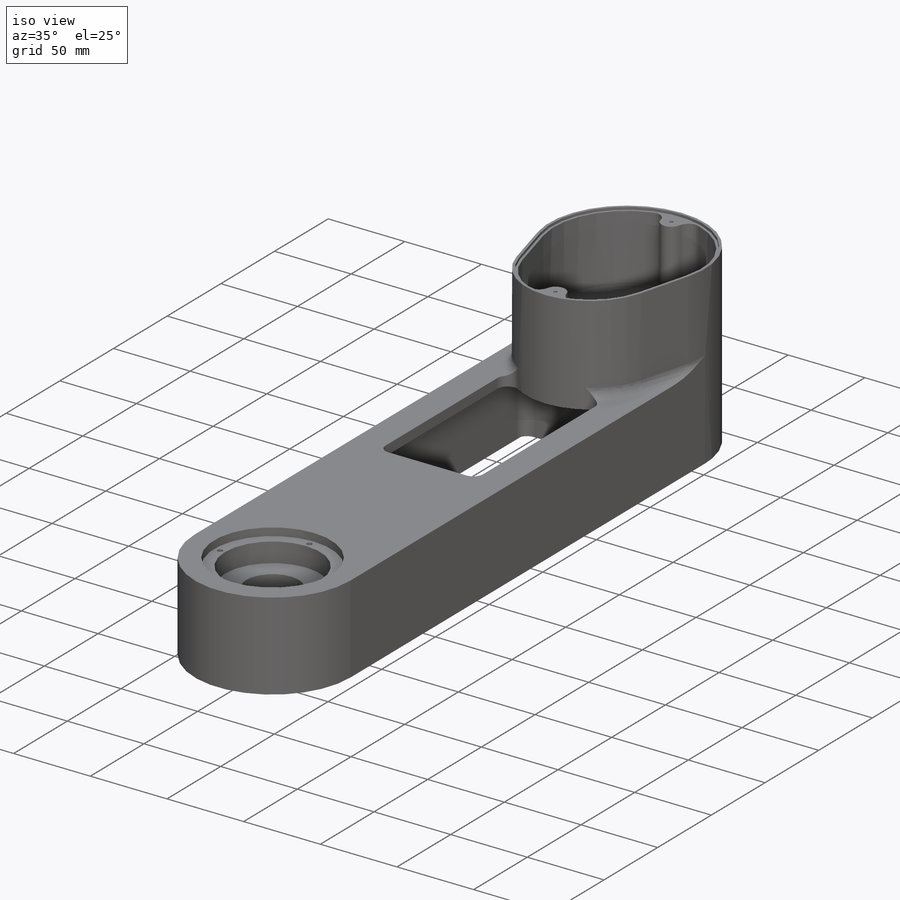
[diagram: iso view]
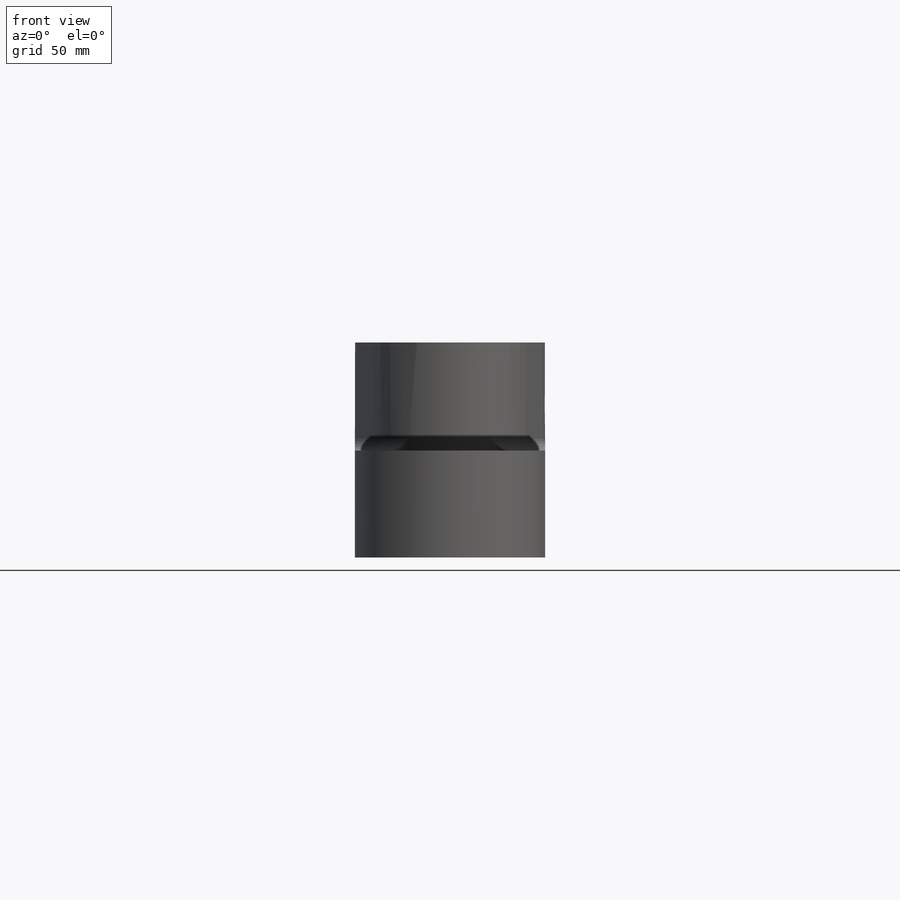
[diagram: front view]
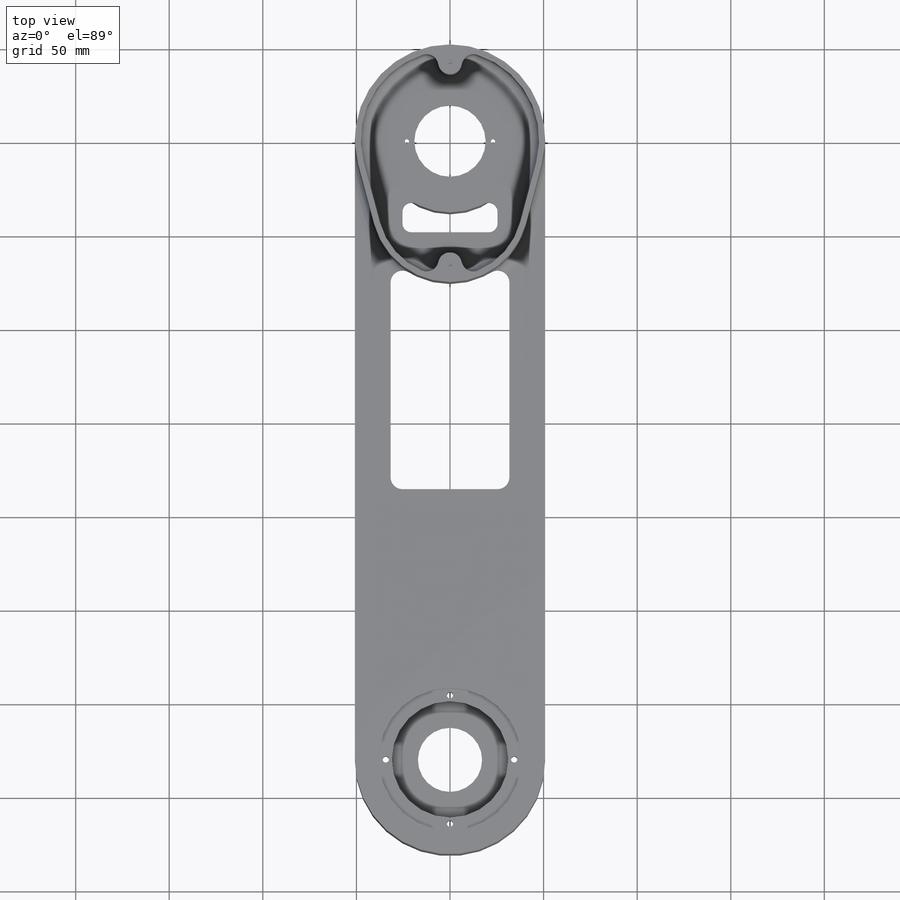
[diagram: top view]
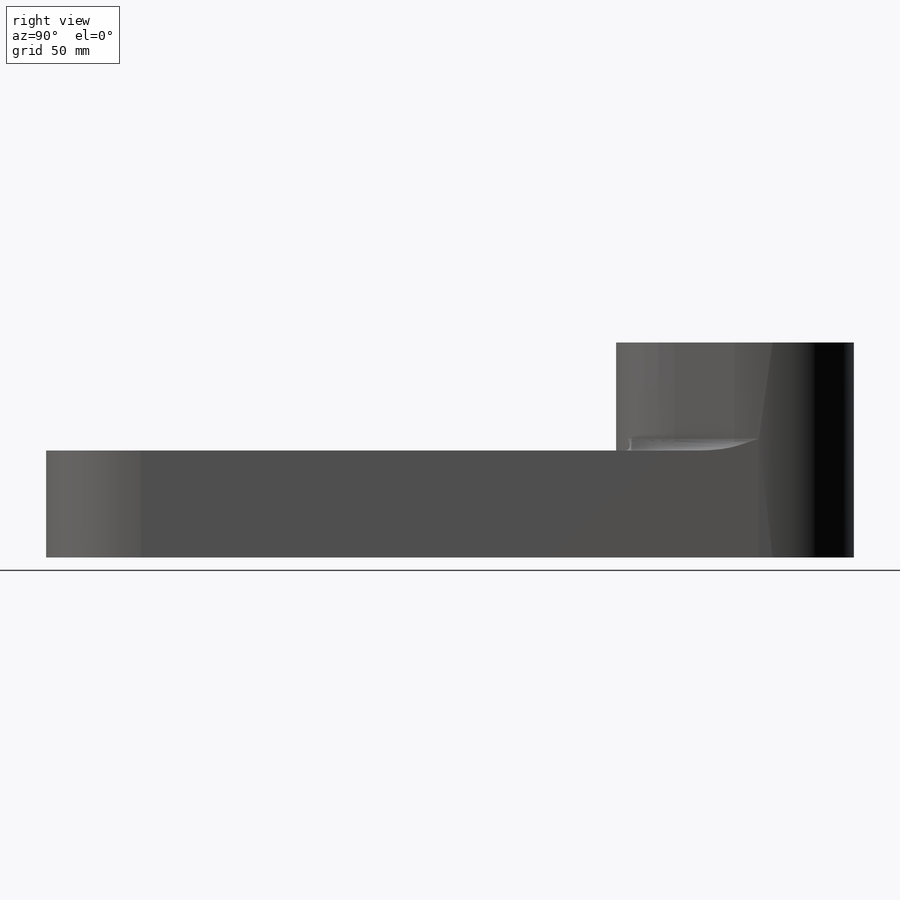
[diagram: right view]
SOLIDWORKS PART (.sldprt)
format: sldprt  version: not decoded by parser v0  size: 1,733,120 bytes
history: native  units: mm
features: sketch x42, thread x17, fillet x17, extrude x14, cut_extrude x14, hole x4, mirror x4, plane x3, boolean_combine x2, material x1, pattern_linear x1, move_body x1 + 1 further entry (+16 scaffold rows collapsed; 5 parser-record rows omitted)
feature tree (142):
  scaffold x16  (default folders/planes/origin — collapsed)
  material  "ABS"
  sketch  "Sketch1"  dims[D1=69.85mm D2=3.175mm]
  extrude  "Boss-Extrude1"  Depth=51.435mm
  sketch  "Sketch6"  dims[D1=0.0mm D2=0.0mm]
  extrude  "Boss-Extrude5"  Depth=6.096mm
  plane  "Plane2"  Offset=29.21mm
  sketch  "Sketch12"  dims[D1=50.8mm D2=0.0mm]
  extrude  "Boss-Extrude8"  [1 undecoded]
  sketch  "Sketch2"  dims[D1=38.1mm D2=0.0mm]
  extrude  "Boss-Extrude2"  Depth=6.35mm
  plane  "Plane1"  Offset=24.765mm
  sketch  "Sketch4"  dims[D1=53.8988mm]
  cut_extrude  "Cut-Extrude1"  Depth=1.7272mm
  sketch  "Sketch5"  dims[D1=2.2606mm D2=46.0248mm D3=23.0124mm D4=6.35mm D5=3.175mm D6=3.175mm]
  cut_extrude  "Cut-Extrude5"  [1 undecoded]
  thread  "Cosmetic Thread1"  Diameter=2.8448mm  [1 undecoded]
  thread  "Cosmetic Thread2"  Diameter=2.8448mm  [1 undecoded]
  sketch  "Sketch7"  dims[c1.D1=101.6mm c1.D2=101.6mm c1.D4=50.8mm c2.D2=330.2mm c2.D3=0.0mm]
  extrude  "Boss-Extrude6 length"  Depth=50.8mm
  boolean_combine  "Combine2"
  sketch  "Sketch18"  dims[D1=3.175mm]
  cut_extrude  "Cut-Extrude6"  Depth=6.35mm
  sketch  "Sketch28"  dims[D1=76.2mm]
  cut_extrude  "Cut-Extrude12"  Depth=5.08mm
  sketch  "Sketch21"  dims[D1=62.23mm]
  cut_extrude  "Cut-Extrude8"  [1 undecoded]
  sketch  "Sketch22"  dims[c1.D1=76.2mm c1.D2=76.2mm c1.D3=62.23mm c2.D2=44.45mm c2.D1=0.0mm]
  extrude  "Boss-Extrude10"  Depth=11.43mm
  sketch  "Sketch23"  dims[D1=34.29mm D3=29.21mm D2=0.0mm]
  extrude  "Boss-Extrude11"  Depth=3.175mm
  sketch  "Sketch20"  dims[D1=68.58mm D2=~3.29946mm D3=4.0]
  cut_extrude  "Cut-Extrude7"  [1 undecoded]
  thread  "Cosmetic Thread3"  Diameter=4.1656mm  [1 undecoded]
  thread  "Cosmetic Thread4"  Diameter=4.1656mm  [1 undecoded]
  thread  "Cosmetic Thread5"  Diameter=4.1656mm  [1 undecoded]
  thread  "Cosmetic Thread6"  Diameter=4.1656mm  [1 undecoded]
  sketch  "Sketch24"  dims[D1=38.1mm D2=50.8mm]
  extrude  "Boss-Extrude12"  Depth=14.2875mm
  plane  "Plane3"  Offset=11.1125mm
  sketch  "Sketch25"  dims[D1=40.4876mm]
  cut_extrude  "Cut-Extrude9"  Depth=1.4224mm
  sketch  "Sketch26"  dims[D1=46.0248mm D2=2.2606mm D4=2.2606mm D3=2.0]
  cut_extrude  "Cut-Extrude10"  [1 undecoded]
  thread  "Cosmetic Thread7"  Diameter=2.8448mm  [1 undecoded]
  thread  "Cosmetic Thread8"  Diameter=2.8448mm  [1 undecoded]
  sketch  "origin reference"
  sketch  "Sketch29"  dims[D2=19.05mm D1=0.0mm]
  cut_extrude  "Cut-Extrude13"  [1 undecoded]
  fillet  "Fillet1"  Radius=3.175mm
  sketch  "Sketch30"  dims[D2=20.32mm D3=25.4mm D1=0.0mm]
  cut_extrude  "Cut-Extrude14"  [1 undecoded]
  fillet  "Fillet2"  Radius=4.7625mm
  fillet  "Fillet3"  Radius=4.7625mm
  sketch  "Sketch31"  dims[c1.D2=~62.675127mm c2.D2=20.0deg c2.D3=76.2mm c2.D1=5.08mm]
  sketch  "Sketch32"  dims[c1.D1=76.2mm c1.D2=~75.382712mm c2.D2=15.0deg c3.D2=~63.434178mm c4.D2=15.0deg c4.D1=76.2mm c5.D1=57.658mm c5.D5=3.175mm c5.D6=1.0mm c5.D7=5.0mm]
  sketch  "Sketch33"  dims[D1=3.175mm D2=6.985mm D3=19.05mm]
  extrude  "Boss-Extrude13"  Depth=4.572mm
  hole  "#4-40 Tapped Hole1"  Diameter=2.2606mm Depth=7.62mm
  sketch  "Sketch35"
  sketch  "Sketch34"  dims[hole-wizard template sketch: 50 standard entries collapsed; hole parameters above]
  thread  "Hole Thread7"  Diameter=5.588mm  [1 undecoded]
  pattern_linear  "LPattern1"  Count1=3 Count2=1 Spacing1=42.545mm Spacing2=50mm
  mirror  "Mirror1"
  sketch  "Sketch36"
  sketch  "Sketch37"  dims[c1.D1=6.35mm c1.D2=6.35mm c1.D3=31.75mm c1.D4=31.75mm c2.D2=33.02mm]
  cut_extrude  "Cut-Extrude15"  [1 undecoded]
  sketch  "Sketch38"  dims[D1=1.651mm]
  cut_extrude  "Cut-Extrude16"  Depth=1.651mm
  sketch  "Sketch40"  dims[D1=1.524mm]
  cut_extrude  "Cut-Extrude17"  Depth=1.651mm
  sketch  "Sketch41"  dims[D1=8.89mm]
  extrude  "Boss-Extrude14"  [1 undecoded]
  hole  "#4-40 Tapped Hole2"  Diameter=2.2606mm Depth=7.62mm
  sketch  "Sketch43"  dims[c1.D1=6.35mm c1.D2=5.08mm c2.D1=10.16mm]
  sketch  "Sketch42"  dims[hole-wizard template sketch: 50 standard entries collapsed; hole parameters above]
  thread  "Hole Thread8"  Diameter=5.588mm  [1 undecoded]
  fillet  "Fillet5"  Radius=8.89mm
  mirror  "Mirror2"
  sketch  "Sketch44"  dims[D1=12.7mm D2=12.7mm D3=19.05mm]
  extrude  "Boss-Extrude15"  [1 undecoded]
  fillet  "Fillet6"  [1 undecoded]
  hole  "#4-40 Tapped Hole3"  Diameter=2.2606mm Depth=7.62mm
  sketch  "Sketch46"
  sketch  "Sketch45"  dims[hole-wizard template sketch: 50 standard entries collapsed; hole parameters above]
  thread  "Hole Thread9"  Diameter=5.588mm  [1 undecoded]
  mirror  "Mirror8"
  sketch  "Sketch47"  dims[D1=6.35mm D2=6.35mm D3=12.7mm D4=6.35mm D5=6.35mm D6=12.7mm]
  extrude  "Boss-Extrude16"  [1 undecoded]
  fillet  "Fillet11"  [1 undecoded]
  fillet  "Fillet7"  Radius=6.35mm
  hole  "#4-40 Tapped Hole4"  Diameter=2.2606mm Depth=7.62mm
  sketch  "Sketch49"  dims[D1=6.35mm]
  sketch  "Sketch48"  dims[hole-wizard template sketch: 50 standard entries collapsed; hole parameters above]
  thread  "Hole Thread5"  Diameter=5.588mm  [1 undecoded]
  thread  "Hole Thread6"  Diameter=5.588mm  [1 undecoded]
  sketch  "Sketch50"  dims[D1=152.4mm D2=2.54mm D3=2.54mm]
  sketch  "Sketch52"
  cut_extrude  "Cut-Extrude18"  Depth=2.54mm
  sketch  "Sketch55"  dims[D1=0.0mm]
  extrude  "Boss-Extrude17"  [1 undecoded]
  fillet  "Fillet12"  [1 undecoded]
  fillet  "Fillet13"  Radius=6.35mm
  fillet  "Fillet14"  Radius=6.35mm
  fillet  "Fillet15"  Radius=6.35mm
  fillet  "Fillet16"  Radius=6.35mm
  fillet  "Fillet18"  Radius=6.35mm
  fillet  "Fillet19"  Radius=6.35mm
  "6621_holder_5"
  parser-record x5  (decoder bookkeeping rows leaked as tree rows — omitted from the tree; the rows remain in map.json)
  thread  "Hole Thread1-6621_holder_5"  Diameter=5.588mm  [1 undecoded]
  thread  "Hole Thread2-6621_holder_5"  Diameter=5.588mm  [1 undecoded]
  thread  "Hole Thread3-6621_holder_5"  Diameter=5.588mm  [1 undecoded]
  thread  "Hole Thread4-6621_holder_5"  Diameter=5.588mm  [1 undecoded]
  move_body  "Body-Move/Copy2"
  boolean_combine  "Combine3"
  fillet  "Fillet20"  Radius=6.35mm
  sketch  "Sketch58"  dims[D1=0.0mm]
  extrude  "Boss-Extrude18"  [1 undecoded]
  mirror  "Mirror9"
  fillet  "Fillet25"  Radius=6.35mm
  fillet  "Fillet26"  Radius=3.175mm
  sketch  "Sketch59"
decode coverage: 87 of 116 modeling features carry decoded parameters; 1 rows unclassified (native names shown)
note: ~ marks probable driven/reference dimensions
note: 33 parameter values undecoded
summary: no parameter record found for 16 features; Diameter pulled from absorbed wizard sketch
note: suppression state not decoded; provenance and decode notes live in map.json
